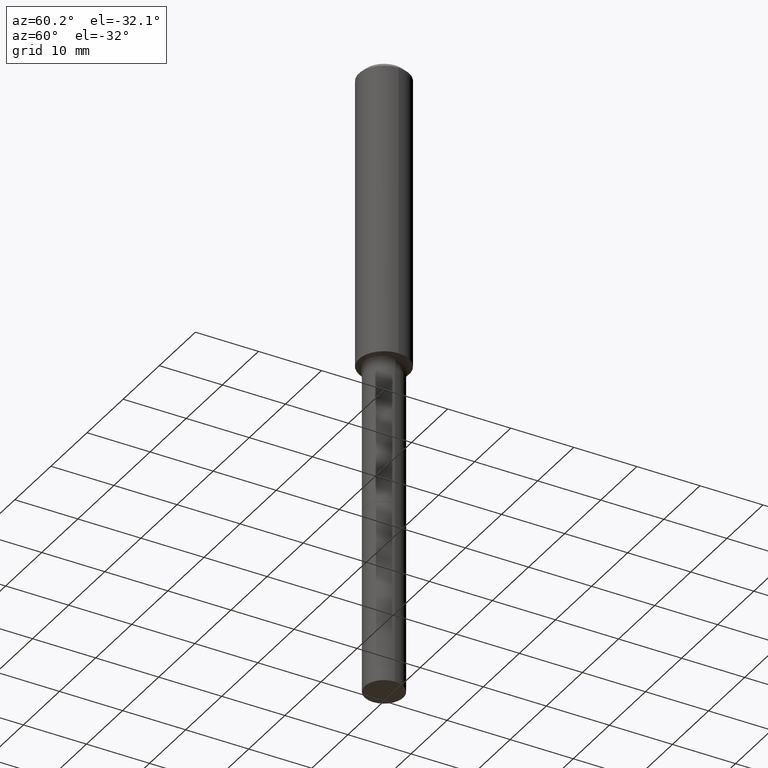
[diagram: clean part render]
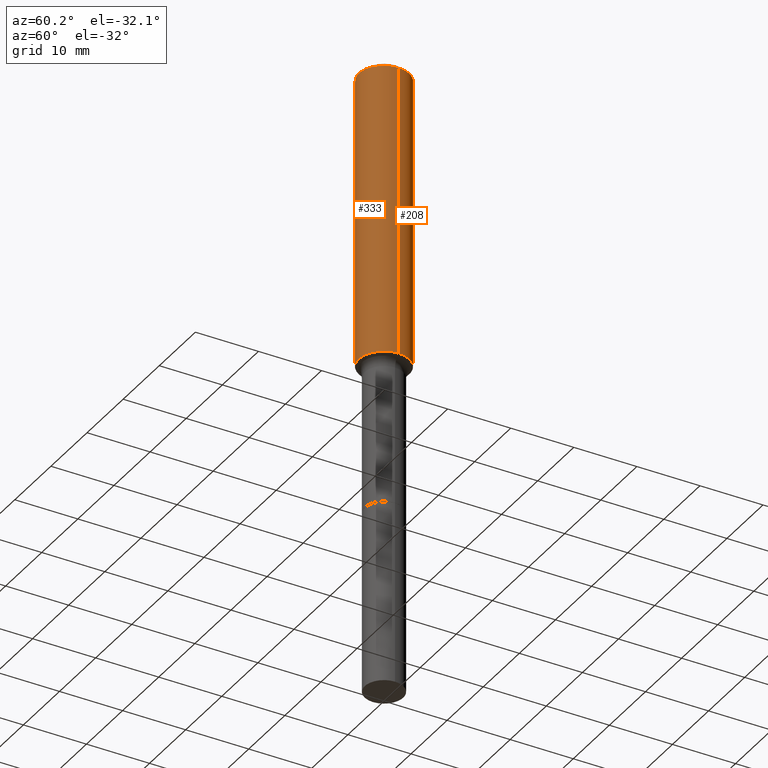
[diagram: same view with one multi-face feature highlighted, each face labeled with its STEP entity id]
A machine part, auxiliary view. The highlighted faces form ONE feature: a constant-radius fillet chain: 2 tangent blend faces with common blend radius 4.0005 mm. The faces share edges in the B-rep.
Their STEP definitions:
[1] entity #208 (Cylinder):
#7 = CARTESIAN_POINT ( 'NONE',  ( 4.542166250519328115E-29, -6.485009606951724031E-15, -1.857380572195881374 ) ) ;
#24 = DIRECTION ( 'NONE',  ( 1.000000000000000000, -6.982962677686265922E-15, 0.000000000000000000 ) ) ;
#26 = EDGE_CURVE ( 'NONE', #340, #364, #407, .T. ) ;
#44 = FACE_OUTER_BOUND ( 'NONE', #266, .T. ) ;
#73 = ORIENTED_EDGE ( 'NONE', *, *, #26, .F. ) ;
#84 = CARTESIAN_POINT ( 'NONE',  ( 0.1575000000000001954, -7.584826228687311511E-15, -1.857380572195881374 ) ) ;
#129 = CARTESIAN_POINT ( 'NONE',  ( 0.1575000000000000011, -1.209798283909146741E-15, -0.03150000000000020145 ) ) ;
#148 = VECTOR ( 'NONE', #391, 39.37007874015748143 ) ;
#161 = CARTESIAN_POINT ( 'NONE',  ( 0.000000000000000000, 0.000000000000000000, 0.000000000000000000 ) ) ;
#162 = DIRECTION ( 'NONE',  ( -2.445468806185136597E-29, 3.491481338843145583E-15, 1.000000000000000000 ) ) ;
#203 = CYLINDRICAL_SURFACE ( 'NONE', #233, 0.1575000000000000844 ) ;
#208 = ADVANCED_FACE ( 'NONE', ( #44 ), #203, .T. ) ;
#225 = CARTESIAN_POINT ( 'NONE',  ( 7.703226739483229599E-31, -1.099816621735597908E-16, -0.03150000000000020145 ) ) ;
#233 = AXIS2_PLACEMENT_3D ( 'NONE', #161, #288, #285 ) ;
#240 = VERTEX_POINT ( 'NONE', #84 ) ;
#241 = EDGE_CURVE ( 'NONE', #240, #489, #439, .T. ) ;
#265 = CARTESIAN_POINT ( 'NONE',  ( -0.1575000000000000844, 1.119104808822158392E-15, -7.747322767151481189E-30 ) ) ;
#266 = EDGE_LOOP ( 'NONE', ( #281, #480, #73, #336 ) ) ;
#281 = ORIENTED_EDGE ( 'NONE', *, *, #241, .T. ) ;
#285 = DIRECTION ( 'NONE',  ( 1.000000000000000000, -6.982962677686267499E-15, 4.876176775795936353E-29 ) ) ;
#288 = DIRECTION ( 'NONE',  ( -2.445468806185136597E-29, 3.491481338843145583E-15, 1.000000000000000000 ) ) ;
#293 = VECTOR ( 'NONE', #496, 39.37007874015748143 ) ;
#324 = DIRECTION ( 'NONE',  ( 1.000000000000000000, -6.982962677686265922E-15, 0.000000000000000000 ) ) ;
#336 = ORIENTED_EDGE ( 'NONE', *, *, #376, .F. ) ;
#338 = AXIS2_PLACEMENT_3D ( 'NONE', #7, #162, #324 ) ;
#340 = VERTEX_POINT ( 'NONE', #129 ) ;
#364 = VERTEX_POINT ( 'NONE', #422 ) ;
#376 = EDGE_CURVE ( 'NONE', #240, #340, #380, .T. ) ;
#380 = LINE ( 'NONE', #459, #293 ) ;
#391 = DIRECTION ( 'NONE',  ( -2.445468806185136877E-29, 3.491481338843145188E-15, 1.000000000000000000 ) ) ;
#407 = CIRCLE ( 'NONE', #449, 0.1575000000000000011 ) ;
#422 = CARTESIAN_POINT ( 'NONE',  ( -0.1575000000000000011, -2.178390825740482563E-15, -0.03150000000000020145 ) ) ;
#428 = LINE ( 'NONE', #265, #148 ) ;
#439 = CIRCLE ( 'NONE', #338, 0.1575000000000001954 ) ;
#449 = AXIS2_PLACEMENT_3D ( 'NONE', #225, #505, #24 ) ;
#459 = CARTESIAN_POINT ( 'NONE',  ( 0.1575000000000000844, -1.099816621735587677E-15, 7.679978421878603638E-30 ) ) ;
#478 = CARTESIAN_POINT ( 'NONE',  ( -0.1575000000000001954, -5.365904798129564850E-15, -1.857380572195881374 ) ) ;
#480 = ORIENTED_EDGE ( 'NONE', *, *, #516, .T. ) ;
#489 = VERTEX_POINT ( 'NONE', #478 ) ;
#496 = DIRECTION ( 'NONE',  ( -2.445468806185136877E-29, 3.491481338843145188E-15, 1.000000000000000000 ) ) ;
#505 = DIRECTION ( 'NONE',  ( -2.445468806185136597E-29, 3.491481338843145583E-15, 1.000000000000000000 ) ) ;
#516 = EDGE_CURVE ( 'NONE', #489, #364, #428, .T. ) ;
[2] entity #333 (Cylinder):
#21 = DIRECTION ( 'NONE',  ( -2.445468806185136597E-29, 3.491481338843145583E-15, 1.000000000000000000 ) ) ;
#30 = DIRECTION ( 'NONE',  ( -2.445468806185136597E-29, 3.491481338843145583E-15, 1.000000000000000000 ) ) ;
#37 = ORIENTED_EDGE ( 'NONE', *, *, #181, .T. ) ;
#46 = EDGE_CURVE ( 'NONE', #364, #340, #212, .T. ) ;
#48 = DIRECTION ( 'NONE',  ( 1.000000000000000000, -6.982962677686265922E-15, 0.000000000000000000 ) ) ;
#58 = DIRECTION ( 'NONE',  ( 1.000000000000000000, -6.982962677686265922E-15, 0.000000000000000000 ) ) ;
#81 = ORIENTED_EDGE ( 'NONE', *, *, #376, .T. ) ;
#82 = AXIS2_PLACEMENT_3D ( 'NONE', #451, #30, #48 ) ;
#84 = CARTESIAN_POINT ( 'NONE',  ( 0.1575000000000001954, -7.584826228687311511E-15, -1.857380572195881374 ) ) ;
#92 = CYLINDRICAL_SURFACE ( 'NONE', #157, 0.1575000000000000844 ) ;
#97 = CARTESIAN_POINT ( 'NONE',  ( 7.703226739483229599E-31, -1.099816621735597908E-16, -0.03150000000000020145 ) ) ;
#100 = DIRECTION ( 'NONE',  ( 1.000000000000000000, -6.982962677686267499E-15, 4.876176775795936353E-29 ) ) ;
#102 = AXIS2_PLACEMENT_3D ( 'NONE', #97, #21, #58 ) ;
#129 = CARTESIAN_POINT ( 'NONE',  ( 0.1575000000000000011, -1.209798283909146741E-15, -0.03150000000000020145 ) ) ;
#130 = FACE_OUTER_BOUND ( 'NONE', #178, .T. ) ;
#148 = VECTOR ( 'NONE', #391, 39.37007874015748143 ) ;
#157 = AXIS2_PLACEMENT_3D ( 'NONE', #493, #207, #100 ) ;
#160 = CIRCLE ( 'NONE', #82, 0.1575000000000001954 ) ;
#178 = EDGE_LOOP ( 'NONE', ( #515, #37, #81, #513 ) ) ;
#181 = EDGE_CURVE ( 'NONE', #489, #240, #160, .T. ) ;
#207 = DIRECTION ( 'NONE',  ( -2.445468806185136597E-29, 3.491481338843145583E-15, 1.000000000000000000 ) ) ;
#212 = CIRCLE ( 'NONE', #102, 0.1575000000000000011 ) ;
#240 = VERTEX_POINT ( 'NONE', #84 ) ;
#265 = CARTESIAN_POINT ( 'NONE',  ( -0.1575000000000000844, 1.119104808822158392E-15, -7.747322767151481189E-30 ) ) ;
#293 = VECTOR ( 'NONE', #496, 39.37007874015748143 ) ;
#333 = ADVANCED_FACE ( 'NONE', ( #130 ), #92, .T. ) ;
#340 = VERTEX_POINT ( 'NONE', #129 ) ;
#364 = VERTEX_POINT ( 'NONE', #422 ) ;
#376 = EDGE_CURVE ( 'NONE', #240, #340, #380, .T. ) ;
#380 = LINE ( 'NONE', #459, #293 ) ;
#391 = DIRECTION ( 'NONE',  ( -2.445468806185136877E-29, 3.491481338843145188E-15, 1.000000000000000000 ) ) ;
#422 = CARTESIAN_POINT ( 'NONE',  ( -0.1575000000000000011, -2.178390825740482563E-15, -0.03150000000000020145 ) ) ;
#428 = LINE ( 'NONE', #265, #148 ) ;
#451 = CARTESIAN_POINT ( 'NONE',  ( 4.542166250519328115E-29, -6.485009606951724031E-15, -1.857380572195881374 ) ) ;
#459 = CARTESIAN_POINT ( 'NONE',  ( 0.1575000000000000844, -1.099816621735587677E-15, 7.679978421878603638E-30 ) ) ;
#478 = CARTESIAN_POINT ( 'NONE',  ( -0.1575000000000001954, -5.365904798129564850E-15, -1.857380572195881374 ) ) ;
#489 = VERTEX_POINT ( 'NONE', #478 ) ;
#493 = CARTESIAN_POINT ( 'NONE',  ( 0.000000000000000000, 0.000000000000000000, 0.000000000000000000 ) ) ;
#496 = DIRECTION ( 'NONE',  ( -2.445468806185136877E-29, 3.491481338843145188E-15, 1.000000000000000000 ) ) ;
#513 = ORIENTED_EDGE ( 'NONE', *, *, #46, .F. ) ;
#515 = ORIENTED_EDGE ( 'NONE', *, *, #516, .F. ) ;
#516 = EDGE_CURVE ( 'NONE', #489, #364, #428, .T. ) ;